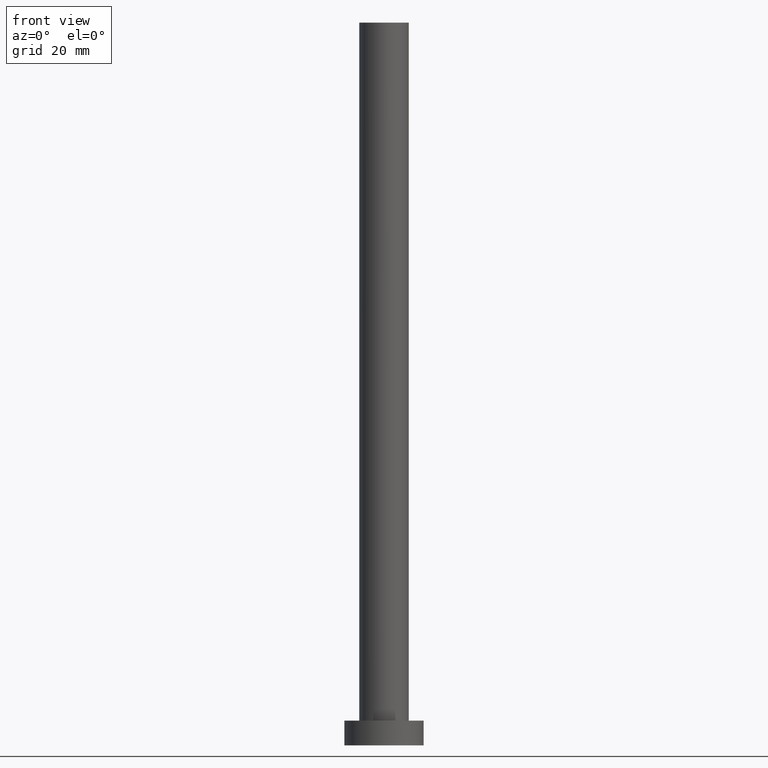
[diagram: clean part render]
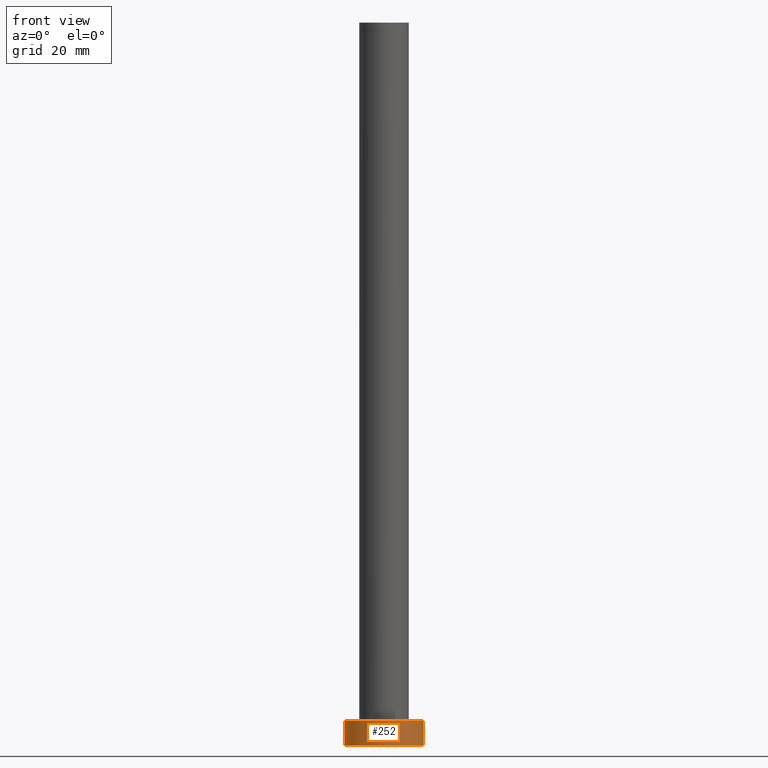
[diagram: same view with one face highlighted and labeled with its STEP entity id]
A machine part, front view. The second image highlights one B-rep face of the part: STEP entity #252.
In plain terms, the highlighted cylindrical surface (partial cylindrical patch) has radius 8 mm, axis along (-0, -0, -1).
Its self-contained STEP definition (entity closure, byte-faithful):
#16 = DIRECTION ( 'NONE',  ( -0.000000000000000000, -0.000000000000000000, -1.000000000000000000 ) ) ;
#18 = ORIENTED_EDGE ( 'NONE', *, *, #157, .F. ) ;
#23 = DIRECTION ( 'NONE',  ( -0.000000000000000000, -0.000000000000000000, -1.000000000000000000 ) ) ;
#33 = EDGE_CURVE ( 'NONE', #47, #106, #70, .T. ) ;
#36 = CYLINDRICAL_SURFACE ( 'NONE', #190, 8.000000000000000000 ) ;
#44 = AXIS2_PLACEMENT_3D ( 'NONE', #168, #231, #113 ) ;
#46 = CARTESIAN_POINT ( 'NONE',  ( 8.000000000000000000, 9.797174393178825657E-16, 0.000000000000000000 ) ) ;
#47 = VERTEX_POINT ( 'NONE', #180 ) ;
#55 = LINE ( 'NONE', #192, #216 ) ;
#63 = CARTESIAN_POINT ( 'NONE',  ( 8.000000000000000000, 9.797174393178825657E-16, 5.000000000000000000 ) ) ;
#70 = CIRCLE ( 'NONE', #214, 8.000000000000000000 ) ;
#75 = VERTEX_POINT ( 'NONE', #63 ) ;
#79 = DIRECTION ( 'NONE',  ( 1.000000000000000000, 0.000000000000000000, 0.000000000000000000 ) ) ;
#88 = DIRECTION ( 'NONE',  ( -0.000000000000000000, -0.000000000000000000, -1.000000000000000000 ) ) ;
#93 = EDGE_CURVE ( 'NONE', #75, #106, #202, .T. ) ;
#103 = CARTESIAN_POINT ( 'NONE',  ( -8.000000000000000000, 0.000000000000000000, 5.000000000000000000 ) ) ;
#106 = VERTEX_POINT ( 'NONE', #46 ) ;
#107 = VERTEX_POINT ( 'NONE', #103 ) ;
#113 = DIRECTION ( 'NONE',  ( 1.000000000000000000, 0.000000000000000000, 0.000000000000000000 ) ) ;
#145 = ORIENTED_EDGE ( 'NONE', *, *, #33, .T. ) ;
#151 = CIRCLE ( 'NONE', #44, 8.000000000000000000 ) ;
#154 = VECTOR ( 'NONE', #23, 1000.000000000000000 ) ;
#157 = EDGE_CURVE ( 'NONE', #107, #75, #151, .T. ) ;
#161 = CARTESIAN_POINT ( 'NONE',  ( 0.000000000000000000, 0.000000000000000000, 0.000000000000000000 ) ) ;
#167 = DIRECTION ( 'NONE',  ( -1.000000000000000000, 0.000000000000000000, 0.000000000000000000 ) ) ;
#168 = CARTESIAN_POINT ( 'NONE',  ( 0.000000000000000000, 0.000000000000000000, 5.000000000000000000 ) ) ;
#170 = FACE_OUTER_BOUND ( 'NONE', #204, .T. ) ;
#180 = CARTESIAN_POINT ( 'NONE',  ( -8.000000000000000000, 0.000000000000000000, 0.000000000000000000 ) ) ;
#190 = AXIS2_PLACEMENT_3D ( 'NONE', #251, #88, #167 ) ;
#192 = CARTESIAN_POINT ( 'NONE',  ( -8.000000000000000000, 0.000000000000000000, 5.000000000000000000 ) ) ;
#202 = LINE ( 'NONE', #222, #154 ) ;
#204 = EDGE_LOOP ( 'NONE', ( #238, #18, #240, #145 ) ) ;
#205 = EDGE_CURVE ( 'NONE', #107, #47, #55, .T. ) ;
#214 = AXIS2_PLACEMENT_3D ( 'NONE', #161, #226, #79 ) ;
#216 = VECTOR ( 'NONE', #16, 1000.000000000000000 ) ;
#222 = CARTESIAN_POINT ( 'NONE',  ( 8.000000000000000000, 9.797174393178825657E-16, 5.000000000000000000 ) ) ;
#226 = DIRECTION ( 'NONE',  ( 0.000000000000000000, 0.000000000000000000, 1.000000000000000000 ) ) ;
#231 = DIRECTION ( 'NONE',  ( 0.000000000000000000, 0.000000000000000000, 1.000000000000000000 ) ) ;
#238 = ORIENTED_EDGE ( 'NONE', *, *, #93, .F. ) ;
#240 = ORIENTED_EDGE ( 'NONE', *, *, #205, .T. ) ;
#251 = CARTESIAN_POINT ( 'NONE',  ( 0.000000000000000000, 0.000000000000000000, 5.000000000000000000 ) ) ;
#252 = ADVANCED_FACE ( 'NONE', ( #170 ), #36, .T. ) ;